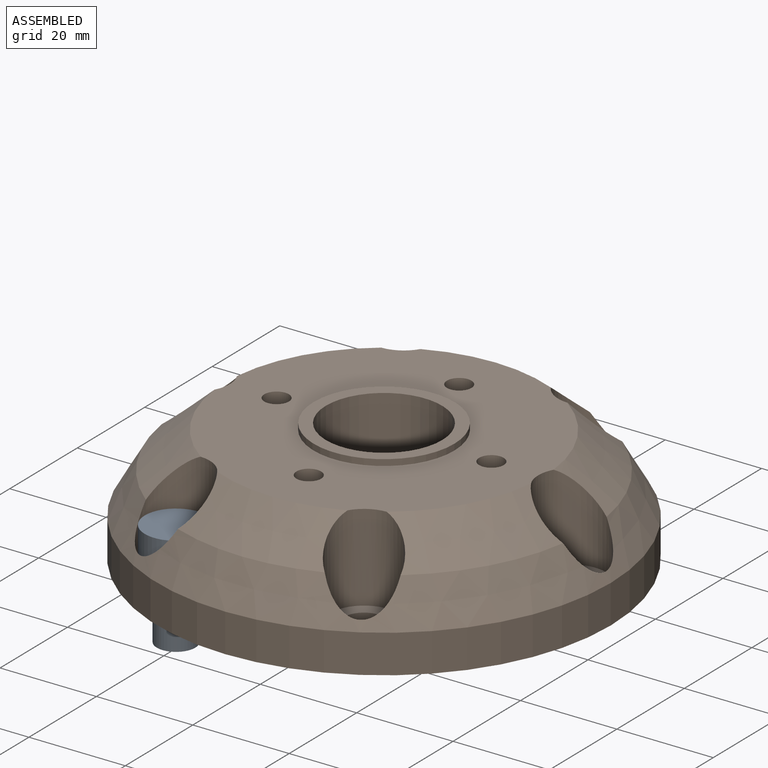
[diagram: assembled view]
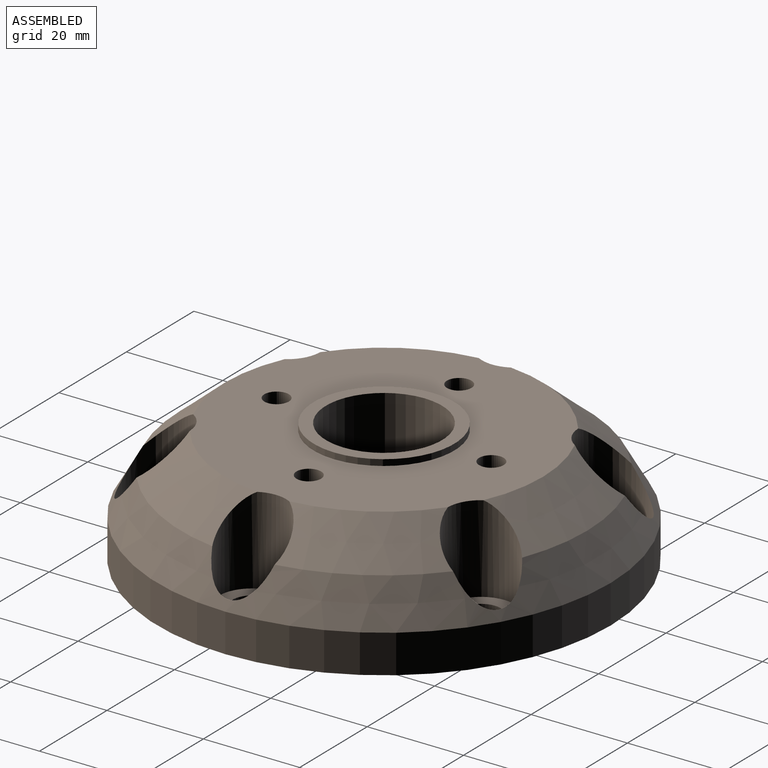
[diagram: assembled view, second angle]
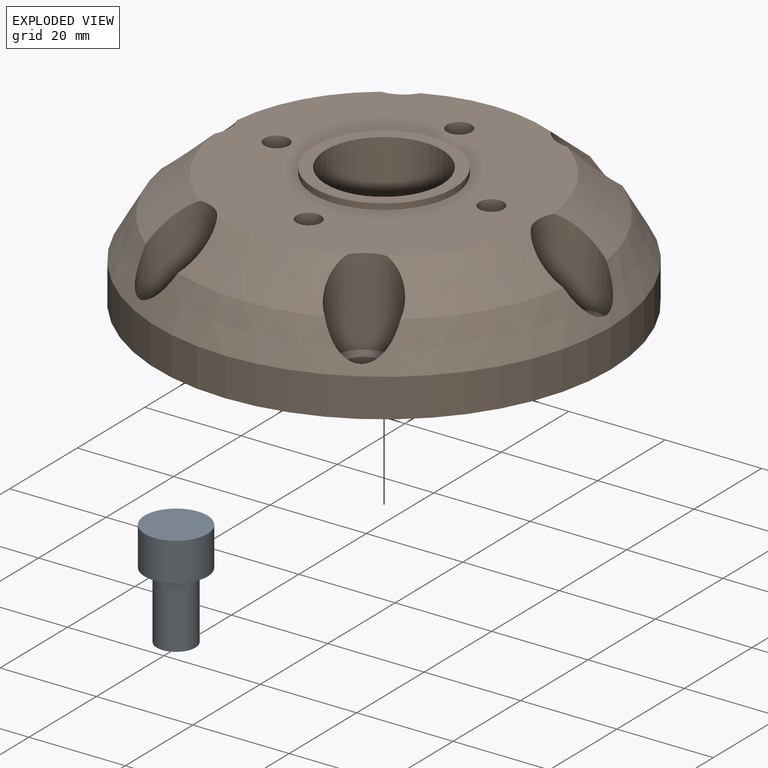
[diagram: exploded view]
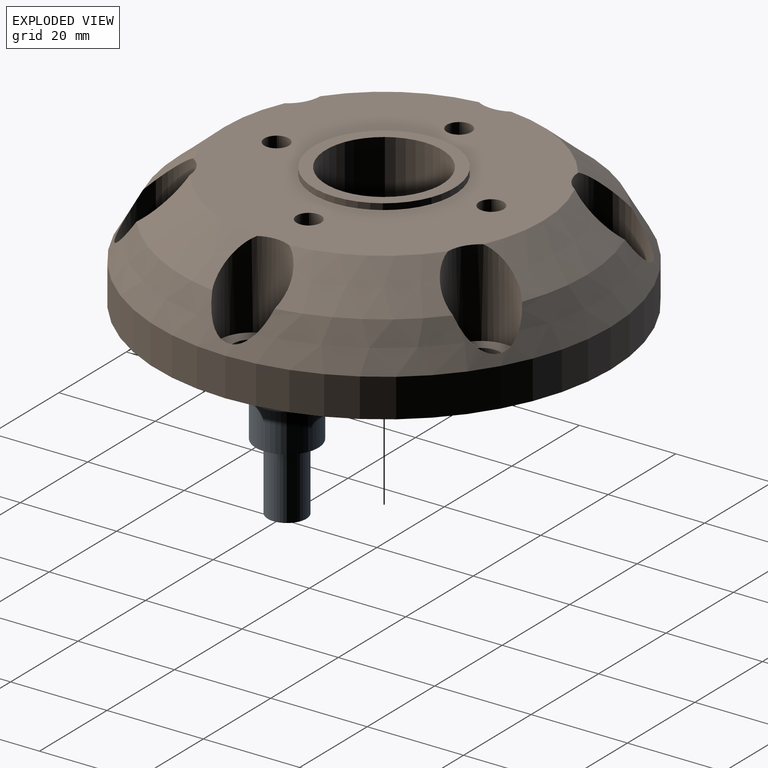
[diagram: exploded view, second angle]
ASSEMBLY  parts=2 mates=2
PART A: 5 faces, bbox 13x13x22 mm
  f0: cylinder r=6.5mm len=13mm, axis (0,0,1), area 326.7mm2, adj f1,f2
  f1: plane 13x13mm, normal (0,0,-1), area 82.5mm2, adj f0,f3
  f2: plane 13x13mm, normal (0,0,1), area 132.7mm2, adj f0
  f3: cylinder r=4mm len=14mm, axis (0,0,1), area 351.9mm2, adj f1,f4
  f4: plane 8x8mm, normal (0,0,-1), area 50.3mm2, adj f3
PART B: 35 faces, bbox 94.1x94.1x25.4 mm
  f0: cylinder r=47.07mm len=94.13mm, axis (0,0,-1), area 2357mm2, adj f7,f28
  f1: cylinder r=7mm len=18.13mm, axis (0,0,-1), area 524.1mm2, adj f8,f21,f28,f29,f30
  f2: cylinder r=7mm len=18.13mm, axis (0,0,-1), area 524.1mm2, adj f9,f21,f28,f31,f32
  f3: cylinder r=7mm len=18.13mm, axis (0,0,-1), area 524.1mm2, adj f10,f21,f28,f32,f33
  f4: cylinder r=7mm len=18.13mm, axis (0,0,-1), area 524.1mm2, adj f11,f21,f28,f30,f31
  f5: cylinder r=7mm len=18.13mm, axis (0,0,-1), area 524.1mm2, adj f12,f21,f28,f29,f34
  f6: cylinder r=7mm len=18.13mm, axis (0,0,-1), area 524.1mm2, adj f13,f21,f28,f33,f34
  f7: plane 94.13x94.13mm, normal (0,0,-1), area 6092.9mm2, adj f0,f14,f15,f16,f17,f18,f19,f23
  f8: plane 14x14mm, normal (0,0,1), area 99.4mm2, adj f1,f19
  f9: plane 14x14mm, normal (0,0,1), area 99.4mm2, adj f2,f18
  f10: plane 14x14mm, normal (0,0,1), area 99.4mm2, adj f3,f17
  f11: plane 14x14mm, normal (0,0,1), area 99.4mm2, adj f4,f16
  f12: plane 14x14mm, normal (0,0,1), area 99.4mm2, adj f5,f15
  f13: plane 14x14mm, normal (0,0,1), area 99.4mm2, adj f6,f14
  f14: cylinder r=4.17mm len=8.33mm, axis (0,0,1), area 157.1mm2, adj f7,f13
  f15: cylinder r=4.17mm len=8.33mm, axis (0,0,1), area 157.1mm2, adj f7,f12
  f16: cylinder r=4.17mm len=8.33mm, axis (0,0,1), area 157.1mm2, adj f7,f11
  f17: cylinder r=4.17mm len=8.33mm, axis (0,0,1), area 157.1mm2, adj f7,f10
  f18: cylinder r=4.17mm len=8.33mm, axis (0,0,1), area 157.1mm2, adj f7,f9
  f19: cylinder r=4.17mm len=8.33mm, axis (0,0,1), area 157.1mm2, adj f7,f8
  f20: cylinder r=14.61mm len=29.21mm, axis (0,0,1), area 116.5mm2, adj f21,f22
  f21: plane 66.04x65.7mm, normal (0,0,1), area 2645.8mm2, adj f1,f2,f3,f4,f5,f6,f20,f24
  f22: plane 29.21x29.21mm, normal (0,0,1), area 212.8mm2, adj f20,f23
  f23: cylinder r=12.06mm len=25.4mm, axis (0,0,1), area 1925.5mm2, adj f7,f22
  f24: cylinder r=2.55mm len=24.13mm, axis (0,0,1), area 387mm2, adj f7,f21
  f25: cylinder r=2.55mm len=24.13mm, axis (0,0,1), area 387mm2, adj f7,f21
  f26: cylinder r=2.55mm len=24.13mm, axis (0,0,1), area 387mm2, adj f7,f21
  f27: cylinder r=2.55mm len=24.13mm, axis (0,0,1), area 387mm2, adj f7,f21
  f28: cone r=47.07mm half-angle=30deg, axis (0,0,-1), area 2311.8mm2, adj f0,f1,f2,f3,f4,f5,f6,f29
  f29: cone r=42.17mm half-angle=50deg, axis (0,0,-1), area 322.5mm2, adj f1,f5,f21,f28
  f30: cone r=42.17mm half-angle=50deg, axis (0,0,-1), area 322.5mm2, adj f1,f4,f21,f28
  f31: cone r=42.17mm half-angle=50deg, axis (0,0,-1), area 322.5mm2, adj f2,f4,f21,f28
  f32: cone r=42.17mm half-angle=50deg, axis (0,0,-1), area 322.5mm2, adj f2,f3,f21,f28
  f33: cone r=42.17mm half-angle=50deg, axis (0,0,-1), area 322.5mm2, adj f3,f6,f21,f28
  f34: cone r=42.17mm half-angle=50deg, axis (0,0,-1), area 322.5mm2, adj f5,f6,f21,f28
PLACE A t=(-38.94,-37.9,11.95)mm
PLACE B t=(-19.44,-4.12,-2.05)mm fixed
MATE cylindrical A.f3 <-> B.f5  axis (0,0,1) through (-38.94,-37.9,-3.05)mm
MATE planar A.f0 <-> B.f5  axis (0,0,-1) through (-38.94,-37.9,3.95)mm
